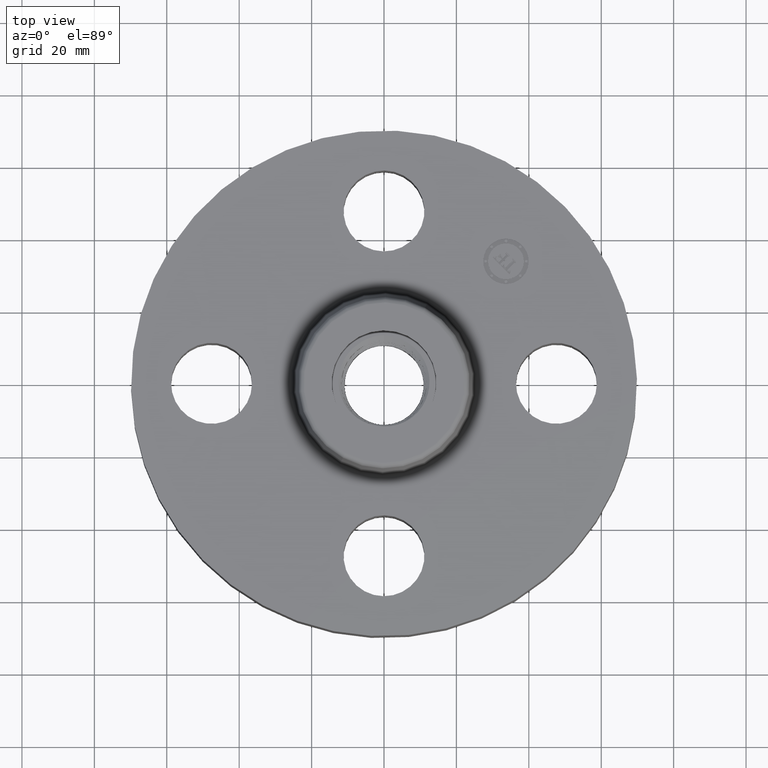
[diagram: clean part render]
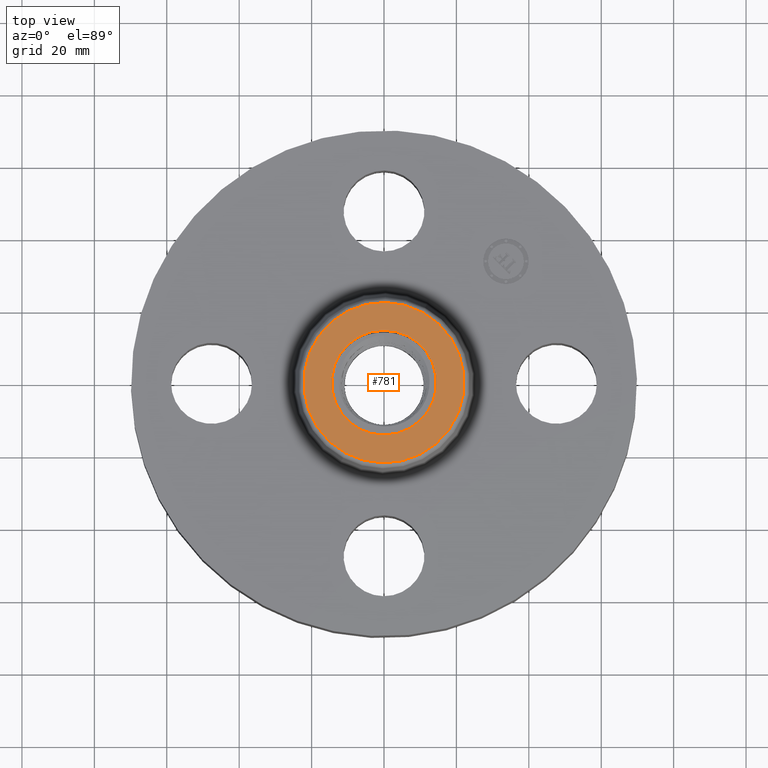
[diagram: same view with one face highlighted and labeled with its STEP entity id]
A machine part, top view. The second image highlights one B-rep face of the part: STEP entity #781.
In plain terms, the highlighted planar face has unit normal (0, 0, -1).
Its self-contained STEP definition (entity closure, byte-faithful):
#374=AXIS2_PLACEMENT_3D('Circle Axis2P3D',#372,#373,$) ;
#400=AXIS2_PLACEMENT_3D('Circle Axis2P3D',#398,#399,$) ;
#610=AXIS2_PLACEMENT_3D('Circle Axis2P3D',#608,#609,$) ;
#629=AXIS2_PLACEMENT_3D('Circle Axis2P3D',#627,#628,$) ;
#771=AXIS2_PLACEMENT_3D('Plane Axis2P3D',#768,#769,#770) ;
#372=CARTESIAN_POINT('Axis2P3D Location',(0.,0.,1.69000000001)) ;
#376=CARTESIAN_POINT('Vertex',(-0.273272557005,0.50022206028,1.69000000001)) ;
#378=CARTESIAN_POINT('Vertex',(0.273272557005,-0.50022206028,1.69000000001)) ;
#398=CARTESIAN_POINT('Axis2P3D Location',(0.,0.,1.69000000001)) ;
#605=CARTESIAN_POINT('Vertex',(0.418092701662,0.76531355693,1.69000000001)) ;
#608=CARTESIAN_POINT('Axis2P3D Location',(0.,0.,1.69000000001)) ;
#612=CARTESIAN_POINT('Vertex',(-0.418092701662,-0.76531355693,1.69000000001)) ;
#627=CARTESIAN_POINT('Axis2P3D Location',(0.,0.,1.69000000001)) ;
#768=CARTESIAN_POINT('Axis2P3D Location',(0.,0.872070150621,1.69000000001)) ;
#373=DIRECTION('Axis2P3D Direction',(0.,0.,0.0393700787402)) ;
#399=DIRECTION('Axis2P3D Direction',(0.,0.,0.0393700787402)) ;
#609=DIRECTION('Axis2P3D Direction',(0.,0.,-0.0393700787402)) ;
#628=DIRECTION('Axis2P3D Direction',(0.,0.,-0.0393700787402)) ;
#769=DIRECTION('Axis2P3D Direction',(0.,0.,-0.0393700787402)) ;
#770=DIRECTION('Axis2P3D XDirection',(0.0393700787402,0.,0.)) ;
#774=ORIENTED_EDGE('',*,*,#614,.F.) ;
#775=ORIENTED_EDGE('',*,*,#631,.F.) ;
#778=ORIENTED_EDGE('',*,*,#380,.T.) ;
#779=ORIENTED_EDGE('',*,*,#402,.T.) ;
#780=FACE_BOUND('',#777,.T.) ;
#781=ADVANCED_FACE('PartBody',(#776,#780),#772,.F.) ;
#375=CIRCLE('generated circle',#374,0.570000000002) ;
#401=CIRCLE('generated circle',#400,0.570000000002) ;
#611=CIRCLE('generated circle',#610,0.872070150621) ;
#630=CIRCLE('generated circle',#629,0.872070150621) ;
#380=EDGE_CURVE('',#377,#379,#375,.F.) ;
#402=EDGE_CURVE('',#379,#377,#401,.F.) ;
#614=EDGE_CURVE('',#606,#613,#611,.T.) ;
#631=EDGE_CURVE('',#613,#606,#630,.T.) ;
#773=EDGE_LOOP('',(#774,#775)) ;
#777=EDGE_LOOP('',(#778,#779)) ;
#776=FACE_OUTER_BOUND('',#773,.T.) ;
#772=PLANE('',#771) ;
#377=VERTEX_POINT('',#376) ;
#379=VERTEX_POINT('',#378) ;
#606=VERTEX_POINT('',#605) ;
#613=VERTEX_POINT('',#612) ;